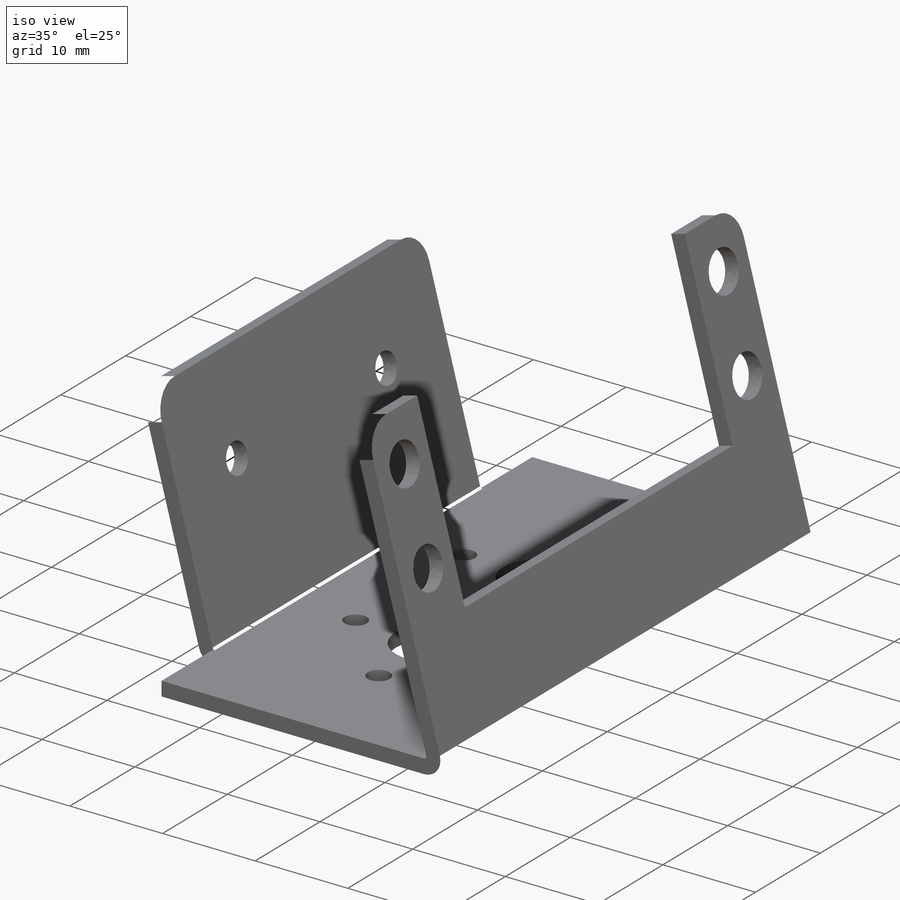
[diagram: iso view]
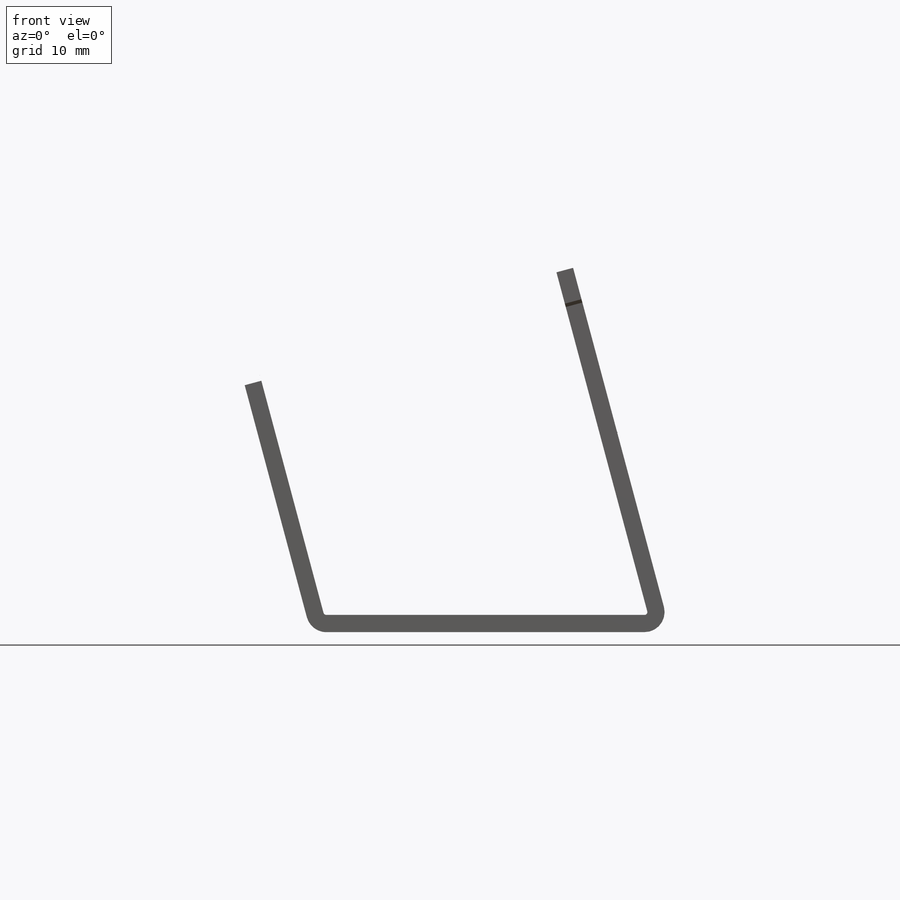
[diagram: front view]
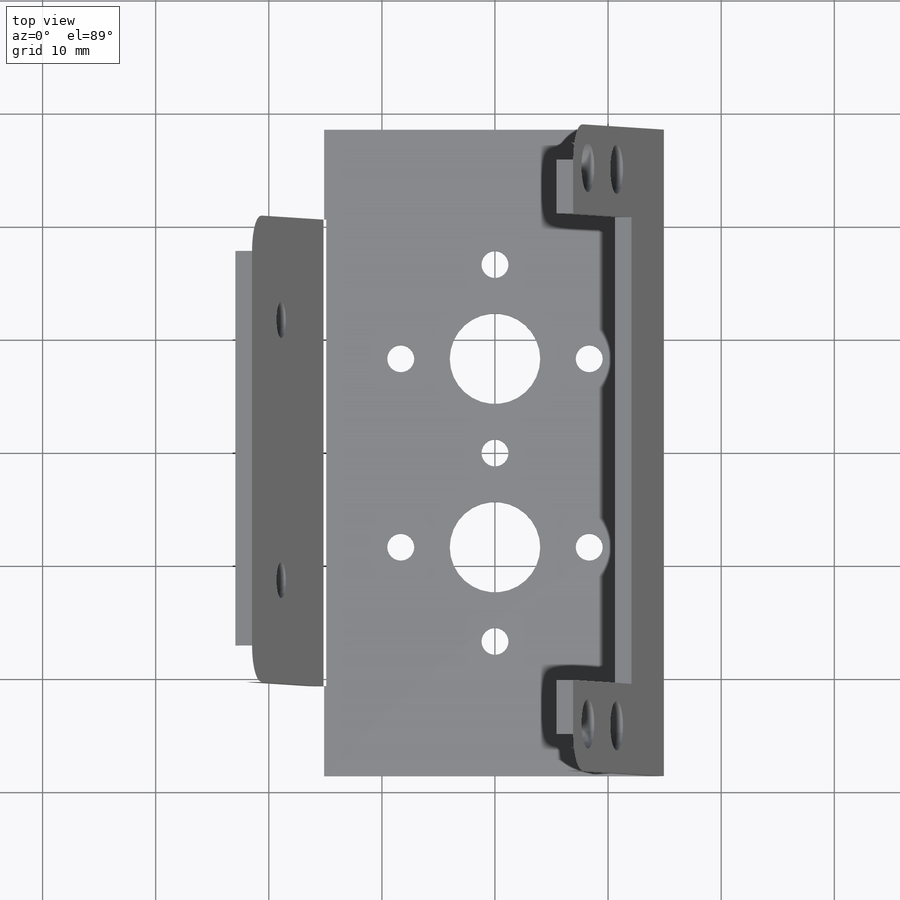
[diagram: top view]
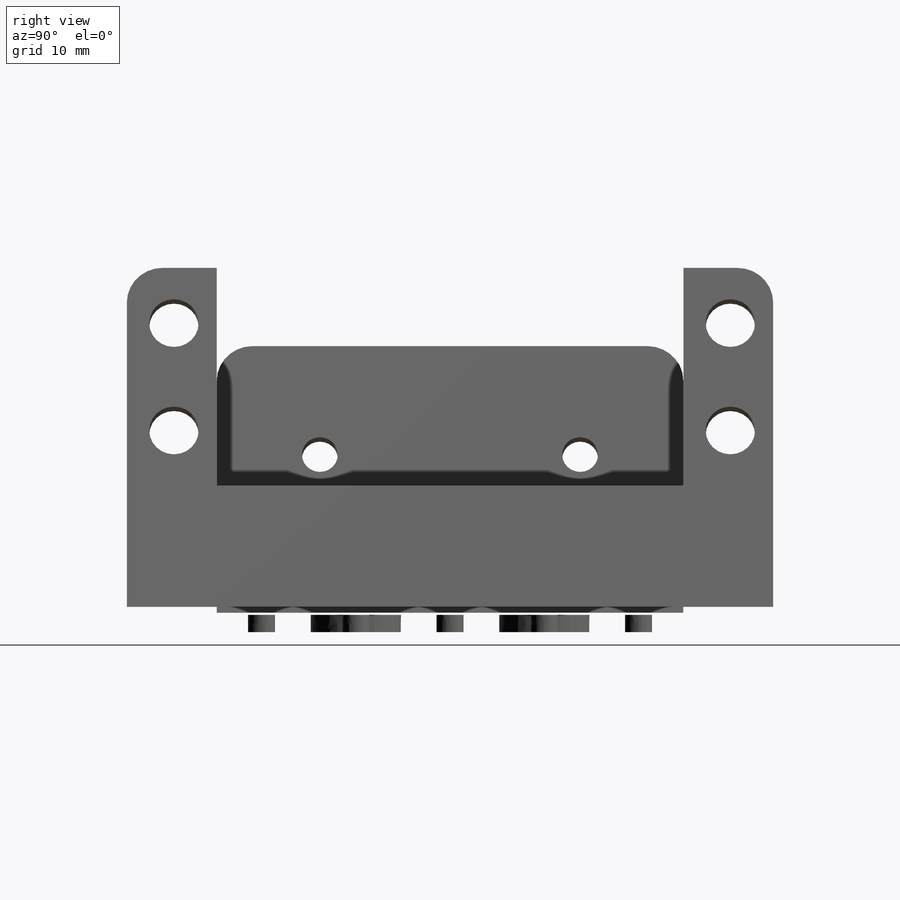
[diagram: right view]
SOLIDWORKS PART (.sldprt)
format: sldprt  version: not decoded by parser v0  size: 523,776 bytes
history: native  units: mm
features: sketch x7, cut_extrude x6, fillet x3, material x1, extrude x1 (+14 scaffold rows collapsed)
feature tree (32):
  scaffold x14  (default folders/planes/origin — collapsed)
  material  "Aluminum"
  sketch  "Sketch1"  dims[c1.D1=30.734mm c1.D2=25.781mm c1.D3=33.3502mm c1.D4=16.2814mm c1.D5=~25.127355mm c2.D5=105.0deg c2.D6=1.524mm]
  extrude  "Extrude1"  Depth=57.15mm
  sketch  "Sketch2"  dims[D1=8.001mm D2=16.6624mm D3=2.3876mm D4=16.2814mm D5=20.2438mm]
  cut_extrude  "Cut-Extrude1"  [1 undecoded]
  sketch  "Sketch21"  dims[D1=8.001mm D2=16.6624mm D3=2.3876mm D4=36.9062mm]
  cut_extrude  "Cut-Extrude11"  [1 undecoded]
  sketch  "Sketch23"  dims[D1=19.9644mm D2=7.9502mm D3=49.2252mm]
  cut_extrude  "Cut-Extrude13"  [1 undecoded]
  sketch  "Sketch24"  dims[c1.D1=4.3688mm c1.D2=4.3688mm c1.D4=4.3688mm c1.D6=4.3688mm c2.D2=5.0546mm c2.D3=14.8844mm c2.D4=9.8298mm c3.D3=4.1656mm c3.D5=53.3654mm c3.D6=49.1998mm]
  cut_extrude  "Cut-Extrude14"  [1 undecoded]
  sketch  "Sketch26"  dims[D1=3.175mm D2=17.0688mm D3=40.0812mm D4=9.9314mm]
  cut_extrude  "Cut-Extrude16"  [1 undecoded]
  sketch  "Sketch27"  dims[D1=7.9502mm D2=12.7mm]
  cut_extrude  "Cut-Extrude17"  [1 undecoded]
  fillet  "Fillet1"  Radius=0.254mm
  fillet  "Fillet2"  Radius=1.778mm
  fillet  "Fillet3"  Radius=3.175mm Thickness=1.524mm
decode coverage: 11 of 17 modeling features carry decoded parameters
note: ~ marks probable driven/reference dimensions
note: 6 parameter values undecoded
summary: no parameter record found for 6 features
note: suppression state not decoded; provenance and decode notes live in map.json
